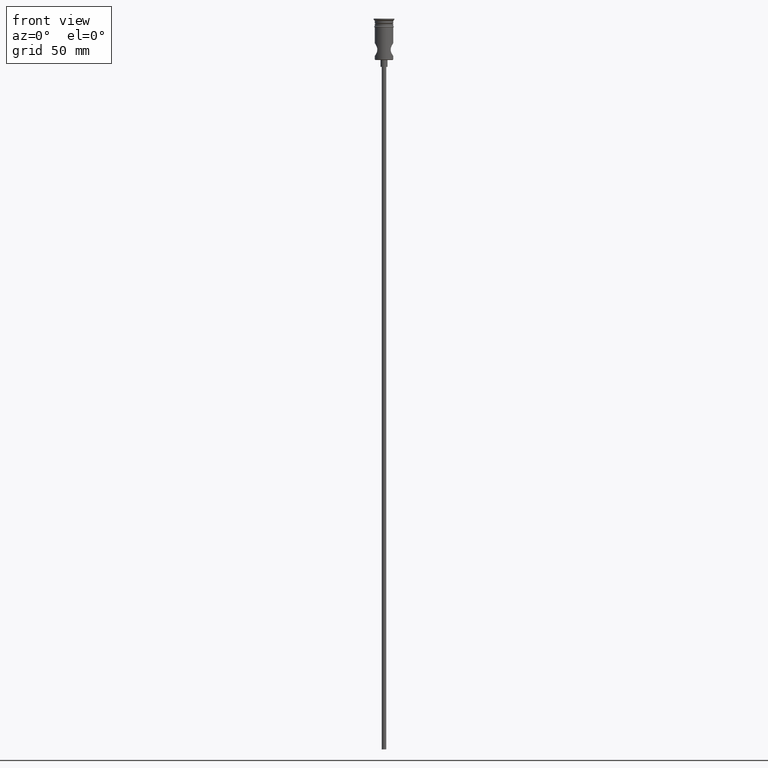
[diagram: clean part render]
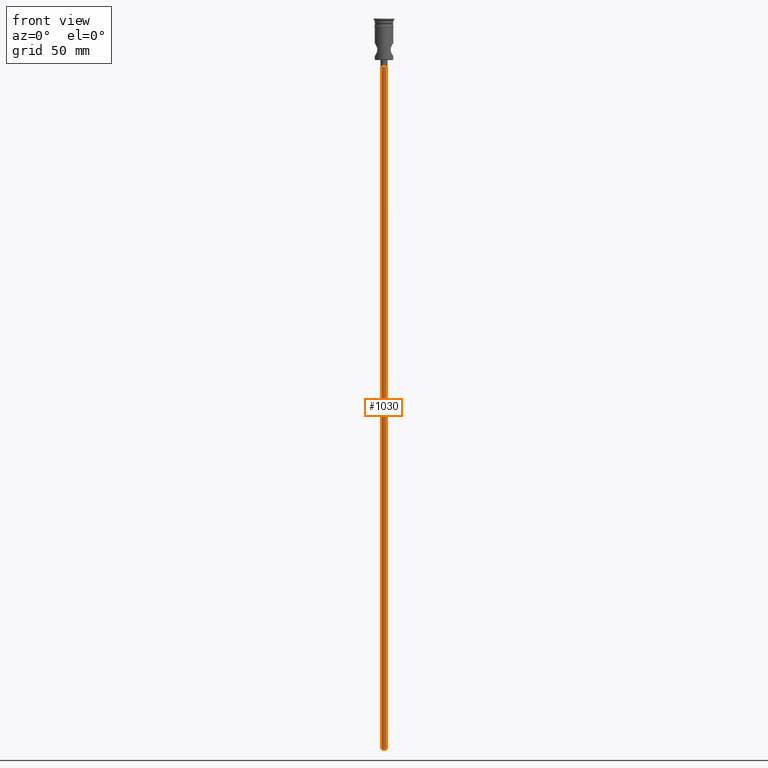
[diagram: same view with one face highlighted and labeled with its STEP entity id]
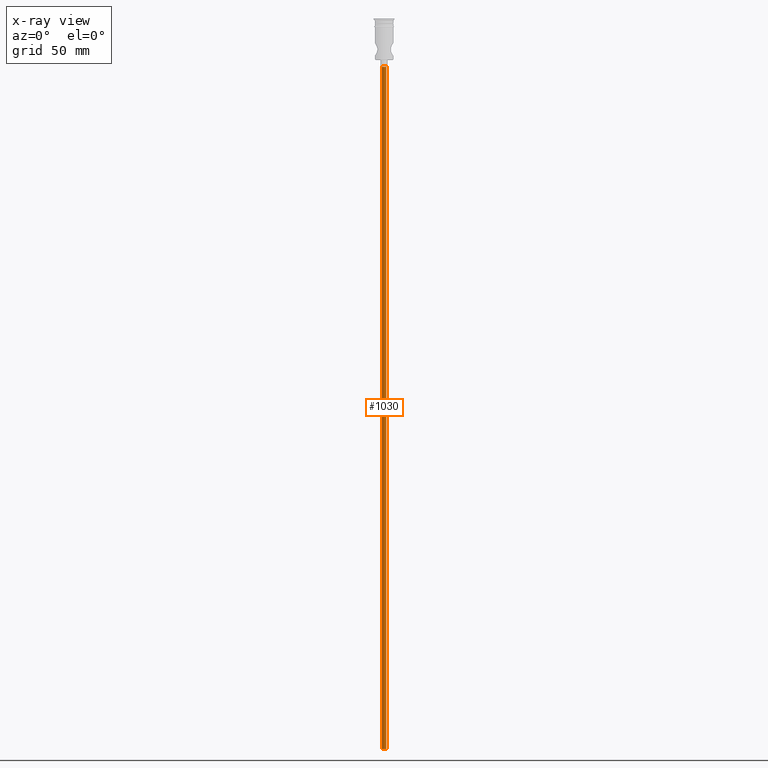
[diagram: x-ray of the same camera — body ghosted, the highlighted face saturated]
A machine part, front view. The second image highlights one B-rep face of the part: STEP entity #1030.
The next image is the same camera in x-ray: the body ghosted, the highlighted face saturated — about 0% of this face is hidden behind the body in this view.
In plain terms, the highlighted cylindrical surface (edge-blend (fillet) strip) has radius 1 mm, axis along (-0, -0, 1).
Its self-contained STEP definition (entity closure, byte-faithful):
#36 = DIRECTION ( 'NONE',  ( 0.000000000000000000, 0.000000000000000000, -1.000000000000000000 ) ) ;
#45 = ORIENTED_EDGE ( 'NONE', *, *, #673, .F. ) ;
#66 = EDGE_CURVE ( 'NONE', #255, #646, #951, .T. ) ;
#73 = ORIENTED_EDGE ( 'NONE', *, *, #1344, .T. ) ;
#125 = CARTESIAN_POINT ( 'NONE',  ( 0.9999999999999997780, 0.000000000000000000, -318.0000000000000000 ) ) ;
#159 = VERTEX_POINT ( 'NONE', #125 ) ;
#163 = CIRCLE ( 'NONE', #720, 0.9999999999999997780 ) ;
#166 = EDGE_CURVE ( 'NONE', #159, #815, #858, .T. ) ;
#185 = VECTOR ( 'NONE', #814, 1000.000000000000000 ) ;
#255 = VERTEX_POINT ( 'NONE', #588 ) ;
#327 = CARTESIAN_POINT ( 'NONE',  ( 0.000000000000000000, 0.000000000000000000, -318.0000000000000000 ) ) ;
#354 = AXIS2_PLACEMENT_3D ( 'NONE', #327, #1317, #1203 ) ;
#369 = CARTESIAN_POINT ( 'NONE',  ( 0.9999999999999997780, 0.000000000000000000, -318.0000000000000000 ) ) ;
#371 = DIRECTION ( 'NONE',  ( -1.000000000000000000, 0.000000000000000000, 0.000000000000000000 ) ) ;
#564 = CARTESIAN_POINT ( 'NONE',  ( 0.9999999999999997780, 0.000000000000000000, -20.99999999999999645 ) ) ;
#588 = CARTESIAN_POINT ( 'NONE',  ( -0.9999999999999997780, 1.224646799147352961E-16, -318.0000000000000000 ) ) ;
#642 = CYLINDRICAL_SURFACE ( 'NONE', #354, 0.9999999999999997780 ) ;
#646 = VERTEX_POINT ( 'NONE', #1418 ) ;
#663 = CARTESIAN_POINT ( 'NONE',  ( 0.000000000000000000, 0.000000000000000000, -20.99999999999999645 ) ) ;
#673 = EDGE_CURVE ( 'NONE', #159, #255, #163, .T. ) ;
#704 = DIRECTION ( 'NONE',  ( -0.000000000000000000, -0.000000000000000000, 1.000000000000000000 ) ) ;
#720 = AXIS2_PLACEMENT_3D ( 'NONE', #927, #36, #371 ) ;
#724 = CARTESIAN_POINT ( 'NONE',  ( -0.9999999999999997780, 1.224646799147352961E-16, -318.0000000000000000 ) ) ;
#814 = DIRECTION ( 'NONE',  ( -0.000000000000000000, -0.000000000000000000, 1.000000000000000000 ) ) ;
#815 = VERTEX_POINT ( 'NONE', #564 ) ;
#839 = FACE_OUTER_BOUND ( 'NONE', #929, .T. ) ;
#858 = LINE ( 'NONE', #369, #185 ) ;
#894 = DIRECTION ( 'NONE',  ( -1.000000000000000000, 0.000000000000000000, 0.000000000000000000 ) ) ;
#927 = CARTESIAN_POINT ( 'NONE',  ( 0.000000000000000000, 0.000000000000000000, -318.0000000000000000 ) ) ;
#929 = EDGE_LOOP ( 'NONE', ( #1402, #45, #1146, #73 ) ) ;
#951 = LINE ( 'NONE', #724, #1383 ) ;
#992 = DIRECTION ( 'NONE',  ( 0.000000000000000000, 0.000000000000000000, -1.000000000000000000 ) ) ;
#1030 = ADVANCED_FACE ( 'NONE', ( #839 ), #642, .T. ) ;
#1051 = CIRCLE ( 'NONE', #1236, 0.9999999999999997780 ) ;
#1146 = ORIENTED_EDGE ( 'NONE', *, *, #166, .T. ) ;
#1203 = DIRECTION ( 'NONE',  ( 1.000000000000000000, 0.000000000000000000, 0.000000000000000000 ) ) ;
#1236 = AXIS2_PLACEMENT_3D ( 'NONE', #663, #992, #894 ) ;
#1317 = DIRECTION ( 'NONE',  ( -0.000000000000000000, -0.000000000000000000, 1.000000000000000000 ) ) ;
#1344 = EDGE_CURVE ( 'NONE', #815, #646, #1051, .T. ) ;
#1383 = VECTOR ( 'NONE', #704, 1000.000000000000000 ) ;
#1402 = ORIENTED_EDGE ( 'NONE', *, *, #66, .F. ) ;
#1418 = CARTESIAN_POINT ( 'NONE',  ( -0.9999999999999997780, 1.224646799147352961E-16, -20.99999999999999645 ) ) ;